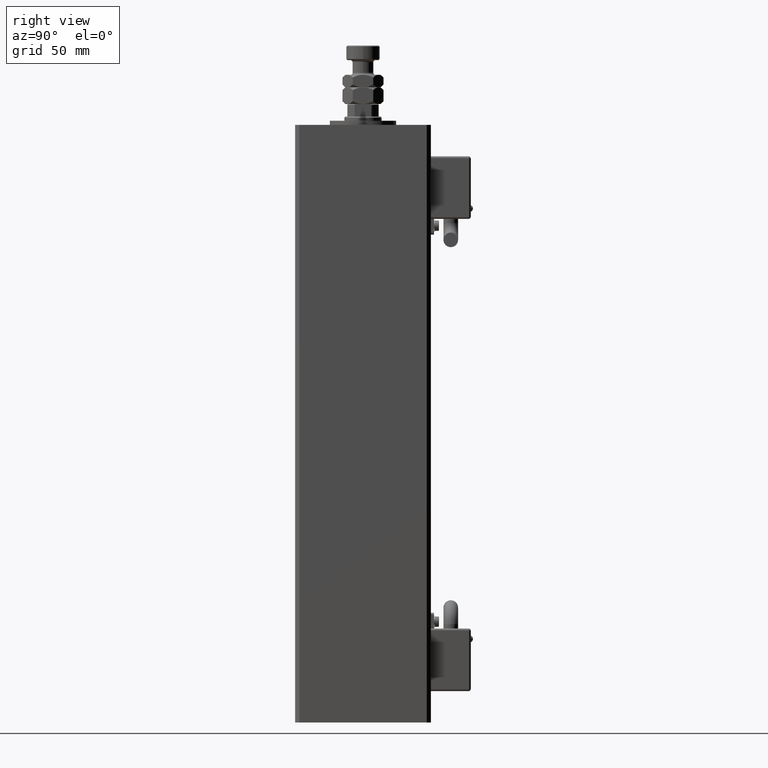
[diagram: clean part render]
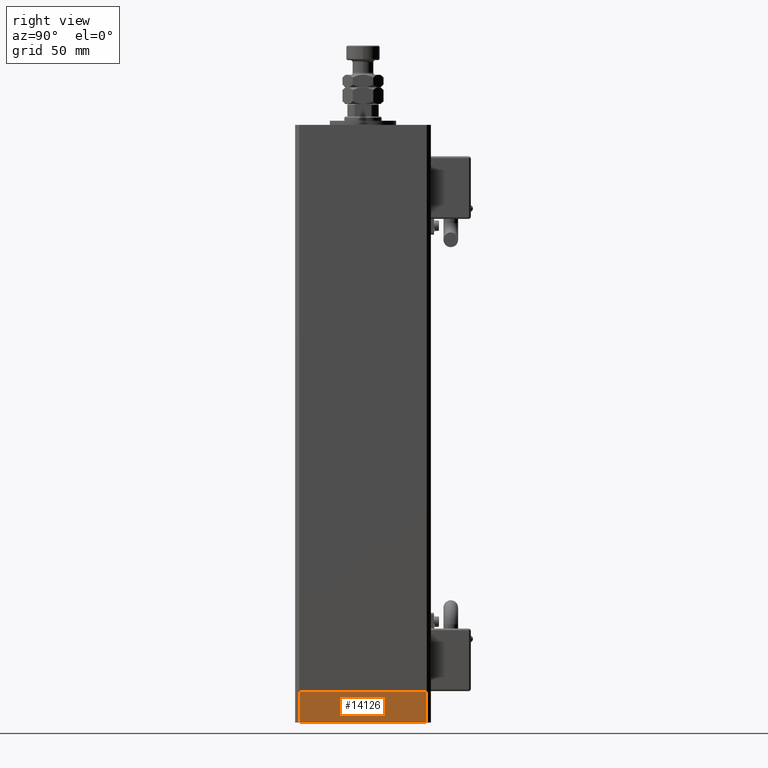
[diagram: same view with one face highlighted and labeled with its STEP entity id]
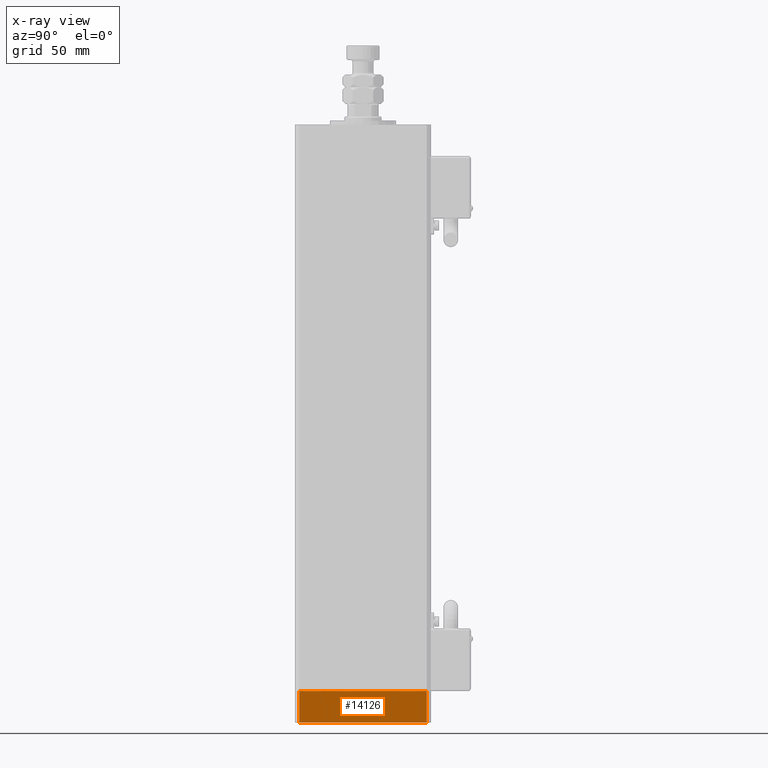
[diagram: x-ray of the same camera — body ghosted, the highlighted face saturated]
A machine part, right view. The second image highlights one B-rep face of the part: STEP entity #14126.
The next image is the same camera in x-ray: the body ghosted, the highlighted face saturated — about 0% of this face is hidden behind the body in this view.
In plain terms, the highlighted planar face has unit normal (1, -0, 0).
Its self-contained STEP definition (entity closure, byte-faithful):
#72 = CARTESIAN_POINT ( 'NONE',  ( -37.50000000000001421, 30.49999999999998579, -15.00000000000000000 ) ) ;
#2197 = CARTESIAN_POINT ( 'NONE',  ( -37.50000000000001421, 30.49999999999998579, -15.00000000000000000 ) ) ;
#3345 = DIRECTION ( 'NONE',  ( 4.550094363217855288E-16, -1.000000000000000000, 0.000000000000000000 ) ) ;
#3641 = VERTEX_POINT ( 'NONE', #7363 ) ;
#4565 = DIRECTION ( 'NONE',  ( 0.000000000000000000, 0.000000000000000000, 1.000000000000000000 ) ) ;
#6042 = LINE ( 'NONE', #42719, #51867 ) ;
#7363 = CARTESIAN_POINT ( 'NONE',  ( -37.50000000000001421, 30.49999999999998579, -15.00000000000000000 ) ) ;
#11860 = VERTEX_POINT ( 'NONE', #43910 ) ;
#11984 = ORIENTED_EDGE ( 'NONE', *, *, #46869, .F. ) ;
#13300 = DIRECTION ( 'NONE',  ( -1.000000000000000000, -4.550094363217855288E-16, 0.000000000000000000 ) ) ;
#14126 = ADVANCED_FACE ( 'NONE', ( #39457 ), #31672, .T. ) ;
#17325 = ORIENTED_EDGE ( 'NONE', *, *, #24234, .F. ) ;
#17511 = CARTESIAN_POINT ( 'NONE',  ( -37.49999999999998579, -30.50000000000001421, -15.00000000000000000 ) ) ;
#20137 = ORIENTED_EDGE ( 'NONE', *, *, #51802, .T. ) ;
#24234 = EDGE_CURVE ( 'NONE', #3641, #11860, #33536, .T. ) ;
#24266 = CARTESIAN_POINT ( 'NONE',  ( -37.50000000000001421, 30.49999999999998579, -15.00000000000000000 ) ) ;
#25749 = VERTEX_POINT ( 'NONE', #40470 ) ;
#26412 = ORIENTED_EDGE ( 'NONE', *, *, #51072, .T. ) ;
#31672 = PLANE ( 'NONE',  #41189 ) ;
#33465 = DIRECTION ( 'NONE',  ( 4.550094363217855288E-16, -1.000000000000000000, 0.000000000000000000 ) ) ;
#33536 = LINE ( 'NONE', #2197, #41392 ) ;
#33745 = VERTEX_POINT ( 'NONE', #17511 ) ;
#38151 = VECTOR ( 'NONE', #4565, 1000.000000000000000 ) ;
#39457 = FACE_OUTER_BOUND ( 'NONE', #40900, .T. ) ;
#40304 = DIRECTION ( 'NONE',  ( 4.550094363217855288E-16, -1.000000000000000000, 0.000000000000000000 ) ) ;
#40470 = CARTESIAN_POINT ( 'NONE',  ( -37.49999999999998579, -30.50000000000001421, 0.000000000000000000 ) ) ;
#40900 = EDGE_LOOP ( 'NONE', ( #11984, #17325, #26412, #20137 ) ) ;
#41189 = AXIS2_PLACEMENT_3D ( 'NONE', #72, #13300, #40304 ) ;
#41392 = VECTOR ( 'NONE', #41862, 1000.000000000000000 ) ;
#41862 = DIRECTION ( 'NONE',  ( 0.000000000000000000, 0.000000000000000000, 1.000000000000000000 ) ) ;
#42719 = CARTESIAN_POINT ( 'NONE',  ( -37.50000000000001421, 30.49999999999998579, 0.000000000000000000 ) ) ;
#43910 = CARTESIAN_POINT ( 'NONE',  ( -37.50000000000001421, 30.49999999999998579, 0.000000000000000000 ) ) ;
#43934 = CARTESIAN_POINT ( 'NONE',  ( -37.49999999999998579, -30.50000000000001421, -15.00000000000000000 ) ) ;
#46869 = EDGE_CURVE ( 'NONE', #11860, #25749, #6042, .T. ) ;
#48238 = LINE ( 'NONE', #43934, #38151 ) ;
#50697 = LINE ( 'NONE', #24266, #51993 ) ;
#51072 = EDGE_CURVE ( 'NONE', #3641, #33745, #50697, .T. ) ;
#51802 = EDGE_CURVE ( 'NONE', #33745, #25749, #48238, .T. ) ;
#51867 = VECTOR ( 'NONE', #3345, 1000.000000000000000 ) ;
#51993 = VECTOR ( 'NONE', #33465, 1000.000000000000000 ) ;